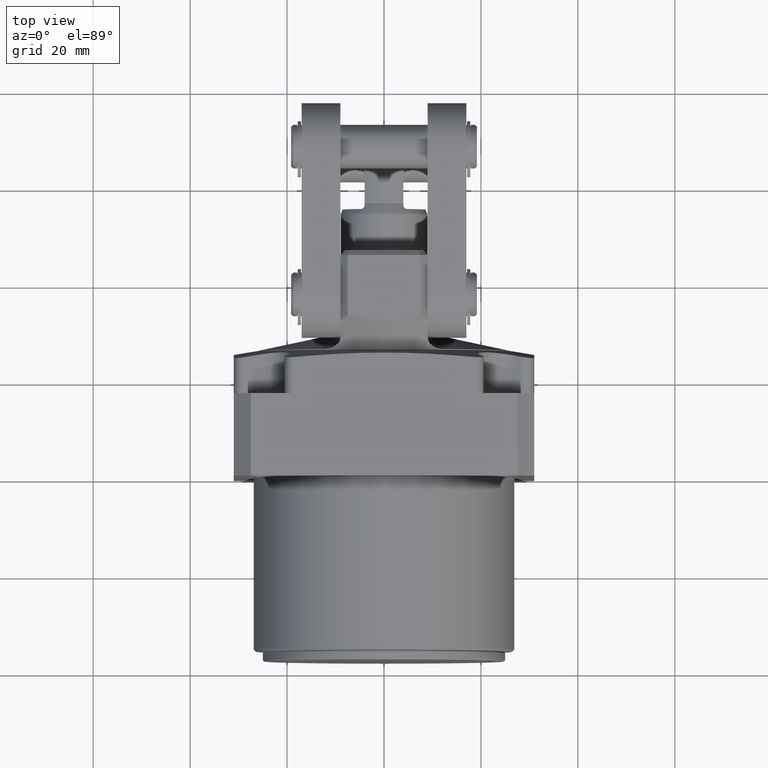
[diagram: clean part render]
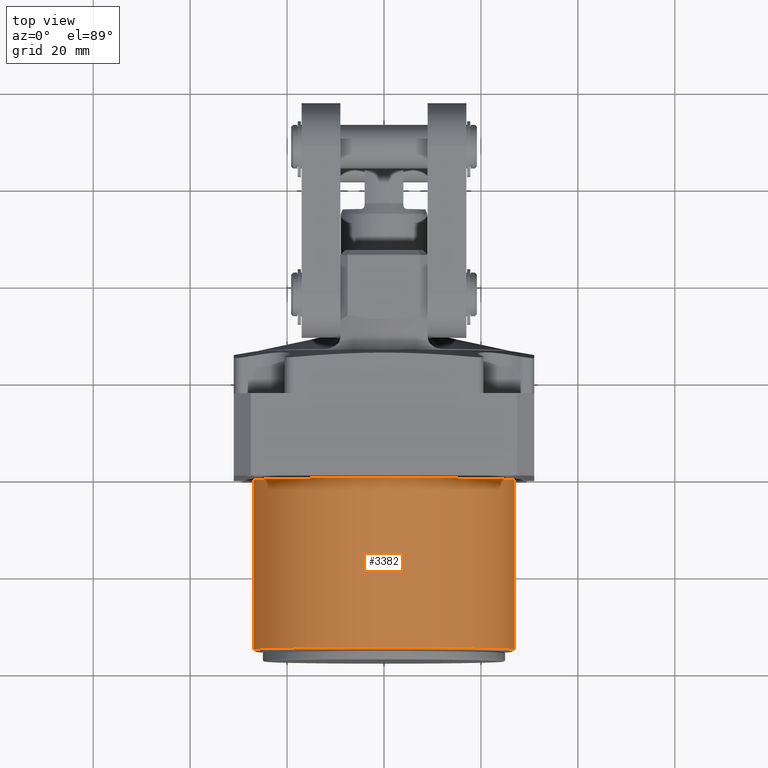
[diagram: same view with one face highlighted and labeled with its STEP entity id]
A machine part, top view. The second image highlights one B-rep face of the part: STEP entity #3382.
In plain terms, the highlighted cylindrical surface (partial cylindrical patch) has radius 26.885 mm, axis along (0, -1, 0).
Its self-contained STEP definition (entity closure, byte-faithful):
#323=CARTESIAN_POINT('',(0.E0,-3.537999204870E1,0.E0));
#324=DIRECTION('',(0.E0,-1.E0,0.E0));
#325=DIRECTION('',(1.E0,0.E0,0.E0));
#326=AXIS2_PLACEMENT_3D('',#323,#324,#325);
#331=CARTESIAN_POINT('',(0.E0,-4.E-1,0.E0));
#332=DIRECTION('',(0.E0,1.E0,0.E0));
#333=DIRECTION('',(-1.E0,0.E0,0.E0));
#334=AXIS2_PLACEMENT_3D('',#331,#332,#333);
#393=DIRECTION('',(8.560985240724E-8,-1.E0,2.314215495520E-10));
#394=VECTOR('',#393,3.498000299563E1);
#395=CARTESIAN_POINT('',(2.6885E1,-4.E-1,-8.565215264746E-13));
#396=LINE('',#395,#394);
#408=DIRECTION('',(-8.560985200098E-8,-1.E0,-2.314218481265E-10));
#409=VECTOR('',#408,3.498000299563E1);
#410=CARTESIAN_POINT('',(-2.6885E1,-4.E-1,8.668145459631E-13));
#411=LINE('',#410,#409);
#2912=CARTESIAN_POINT('',(2.6885E1,-3.537999204870E1,0.E0));
#2913=CARTESIAN_POINT('',(-2.6885E1,-3.537999204870E1,1.193933840682E-14));
#2914=VERTEX_POINT('',#2912);
#2915=VERTEX_POINT('',#2913);
#2916=CARTESIAN_POINT('',(-2.6885E1,-4.E-1,0.E0));
#2917=CARTESIAN_POINT('',(2.6885E1,-4.E-1,0.E0));
#2918=VERTEX_POINT('',#2916);
#2919=VERTEX_POINT('',#2917);
#3368=CARTESIAN_POINT('',(0.E0,1.794E0,0.E0));
#3369=DIRECTION('',(0.E0,-1.E0,0.E0));
#3370=DIRECTION('',(-1.E0,0.E0,0.E0));
#3371=AXIS2_PLACEMENT_3D('',#3368,#3369,#3370);
#3372=CYLINDRICAL_SURFACE('',#3371,2.6885E1);
#3374=ORIENTED_EDGE('',*,*,#3373,.T.);
#3376=ORIENTED_EDGE('',*,*,#3375,.F.);
#3377=ORIENTED_EDGE('',*,*,#3358,.T.);
#3379=ORIENTED_EDGE('',*,*,#3378,.T.);
#3380=EDGE_LOOP('',(#3374,#3376,#3377,#3379));
#3381=FACE_OUTER_BOUND('',#3380,.F.);
#3382=ADVANCED_FACE('',(#3381),#3372,.T.);
#327=CIRCLE('',#326,2.6885E1);
#335=CIRCLE('',#334,2.6885E1);
#3358=EDGE_CURVE('',#2918,#2919,#335,.T.);
#3373=EDGE_CURVE('',#2914,#2915,#327,.T.);
#3375=EDGE_CURVE('',#2918,#2915,#411,.T.);
#3378=EDGE_CURVE('',#2919,#2914,#396,.T.);